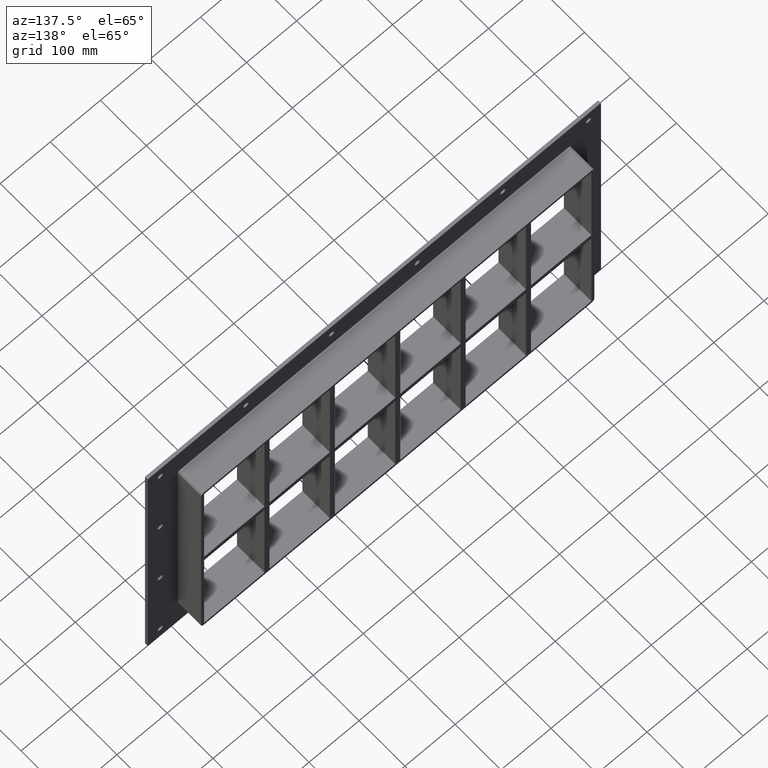
[diagram: clean part render]
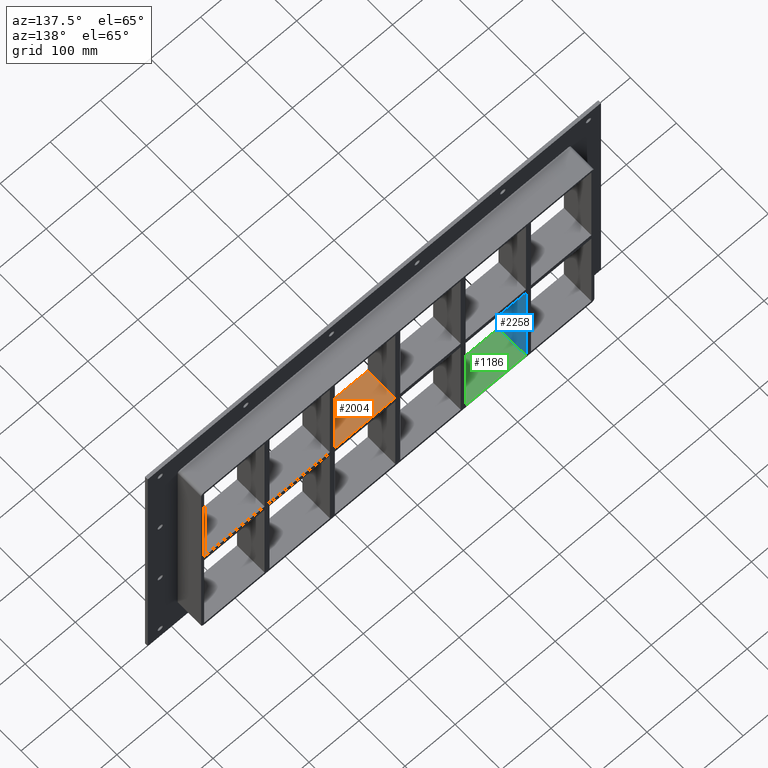
[diagram: same view with three faces highlighted in distinct colors, each labeled with its STEP entity id]
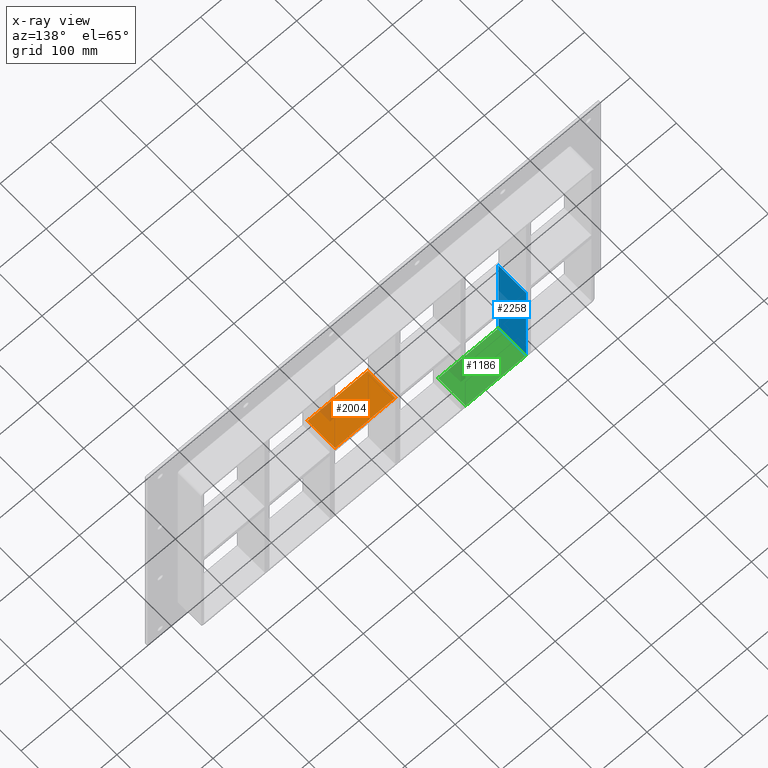
[diagram: x-ray of the same camera — body ghosted, the three highlighted faces saturated]
A machine part, auxiliary view with three faces highlighted in distinct colors.
The next image is the same camera in x-ray (body ghosted, the three faces saturated) — at least one of them is partly hidden behind the body in this view.
Their STEP definitions:

[orange] entity #2004 — the highlighted planar face has unit normal (0, 0, 1).
#681=CARTESIAN_POINT('',(125.49999999999801,-3.0,5.999999999999943));
#682=VERTEX_POINT('',#681);
#683=CARTESIAN_POINT('',(125.49999999999801,57.0,5.999999999999943));
#684=VERTEX_POINT('',#683);
#685=CARTESIAN_POINT('',(125.499999999998,-3.0,5.999999999999943));
#686=DIRECTION('',(0.0,1.0,0.0));
#687=VECTOR('',#686,60.0);
#688=LINE('',#685,#687);
#689=EDGE_CURVE('',#682,#684,#688,.T.);
#921=CARTESIAN_POINT('',(4.999999999996376,57.0,5.999999999999943));
#922=VERTEX_POINT('',#921);
#923=CARTESIAN_POINT('',(4.999999999996376,-3.0,5.999999999999943));
#924=VERTEX_POINT('',#923);
#925=CARTESIAN_POINT('',(4.999999999996376,57.0,5.999999999999943));
#926=DIRECTION('',(0.0,-1.0,0.0));
#927=VECTOR('',#926,60.0);
#928=LINE('',#925,#927);
#929=EDGE_CURVE('',#922,#924,#928,.T.);
#1397=CARTESIAN_POINT('',(4.999999999996362,-3.0,5.999999999999943));
#1398=DIRECTION('',(1.0,0.0,0.0));
#1399=VECTOR('',#1398,120.50000000000171);
#1400=LINE('',#1397,#1399);
#1401=EDGE_CURVE('',#924,#682,#1400,.T.);
#1829=CARTESIAN_POINT('',(4.999999999996362,57.0,5.999999999999943));
#1830=DIRECTION('',(1.0,0.0,0.0));
#1831=VECTOR('',#1830,120.50000000000171);
#1832=LINE('',#1829,#1831);
#1833=EDGE_CURVE('',#922,#684,#1832,.T.);
#1993=CARTESIAN_POINT('',(-386.50000000000057,-3.0,5.999999999999943));
#1994=DIRECTION('',(0.0,0.0,1.0));
#1995=DIRECTION('',(1.0,0.0,0.0));
#1996=AXIS2_PLACEMENT_3D('',#1993,#1994,#1995);
#1997=PLANE('',#1996);
#1998=ORIENTED_EDGE('',*,*,#689,.T.);
#1999=ORIENTED_EDGE('',*,*,#1833,.F.);
#2000=ORIENTED_EDGE('',*,*,#929,.T.);
#2001=ORIENTED_EDGE('',*,*,#1401,.T.);
#2002=EDGE_LOOP('',(#1998,#1999,#2000,#2001));
#2003=FACE_OUTER_BOUND('',#2002,.T.);
#2004=ADVANCED_FACE('',(#2003),#1997,.T.);

[blue] entity #2258 — the highlighted planar face has unit normal (1, 0, 0).
#1162=CARTESIAN_POINT('',(-256.00000000000364,57.0,-223.99999999998656));
#1163=VERTEX_POINT('',#1162);
#1170=CARTESIAN_POINT('',(-256.00000000000364,-3.0,-223.99999999998653));
#1171=VERTEX_POINT('',#1170);
#1172=CARTESIAN_POINT('',(-256.00000000000358,57.000000000000007,-224.00000000000006));
#1173=DIRECTION('',(0.0,-1.0,0.0));
#1174=VECTOR('',#1173,60.000000000000007);
#1175=LINE('',#1172,#1174);
#1176=EDGE_CURVE('',#1163,#1171,#1175,.T.);
#1441=CARTESIAN_POINT('',(-256.00000000000364,-3.0,-6.000000000010179));
#1442=VERTEX_POINT('',#1441);
#1443=CARTESIAN_POINT('',(-256.00000000000364,-3.0,-6.000000000010175));
#1444=DIRECTION('',(0.0,0.0,-1.0));
#1445=VECTOR('',#1444,217.99999999997635);
#1446=LINE('',#1443,#1445);
#1447=EDGE_CURVE('',#1442,#1171,#1446,.T.);
#1626=CARTESIAN_POINT('',(-256.00000000000364,57.0,-6.000000000010179));
#1627=VERTEX_POINT('',#1626);
#1628=CARTESIAN_POINT('',(-256.00000000000364,57.0,-6.000000000010167));
#1629=DIRECTION('',(0.0,-1.0,0.0));
#1630=VECTOR('',#1629,60.0);
#1631=LINE('',#1628,#1630);
#1632=EDGE_CURVE('',#1627,#1442,#1631,.T.);
#1861=CARTESIAN_POINT('',(-256.00000000000364,57.0,-6.000000000010175));
#1862=DIRECTION('',(0.0,0.0,-1.0));
#1863=VECTOR('',#1862,217.99999999997635);
#1864=LINE('',#1861,#1863);
#1865=EDGE_CURVE('',#1627,#1163,#1864,.T.);
#2247=CARTESIAN_POINT('',(-256.00000000000364,-3.0,224.00000000000006));
#2248=DIRECTION('',(1.0,0.0,0.0));
#2249=DIRECTION('',(0.0,0.0,-1.0));
#2250=AXIS2_PLACEMENT_3D('',#2247,#2248,#2249);
#2251=PLANE('',#2250);
#2252=ORIENTED_EDGE('',*,*,#1632,.T.);
#2253=ORIENTED_EDGE('',*,*,#1447,.T.);
#2254=ORIENTED_EDGE('',*,*,#1176,.F.);
#2255=ORIENTED_EDGE('',*,*,#1865,.F.);
#2256=EDGE_LOOP('',(#2252,#2253,#2254,#2255));
#2257=FACE_OUTER_BOUND('',#2256,.T.);
#2258=ADVANCED_FACE('',(#2257),#2251,.T.);

[green] entity #1186 — the highlighted planar face has unit normal (0, 0, -1).
#1051=CARTESIAN_POINT('',(-135.50000000000199,57.0,-224.00000000000006));
#1052=VERTEX_POINT('',#1051);
#1059=CARTESIAN_POINT('',(-135.50000000000199,-3.0,-224.00000000000006));
#1060=VERTEX_POINT('',#1059);
#1061=CARTESIAN_POINT('',(-135.50000000000202,-3.0,-224.00000000000006));
#1062=DIRECTION('',(0.0,1.0,0.0));
#1063=VECTOR('',#1062,60.000000000000007);
#1064=LINE('',#1061,#1063);
#1065=EDGE_CURVE('',#1060,#1052,#1064,.T.);
#1156=CARTESIAN_POINT('',(386.50000000000011,0.0,-224.00000000000006));
#1157=DIRECTION('',(0.0,0.0,-1.0));
#1158=DIRECTION('',(-1.0,0.0,0.0));
#1159=AXIS2_PLACEMENT_3D('',#1156,#1157,#1158);
#1160=PLANE('',#1159);
#1161=ORIENTED_EDGE('',*,*,#1065,.T.);
#1162=CARTESIAN_POINT('',(-256.00000000000364,57.0,-223.99999999998656));
#1163=VERTEX_POINT('',#1162);
#1164=CARTESIAN_POINT('',(-256.00000000000364,57.0,-224.00000000000006));
#1165=DIRECTION('',(1.0,0.0,0.0));
#1166=VECTOR('',#1165,120.50000000000168);
#1167=LINE('',#1164,#1166);
#1168=EDGE_CURVE('',#1163,#1052,#1167,.T.);
#1169=ORIENTED_EDGE('',*,*,#1168,.F.);
#1170=CARTESIAN_POINT('',(-256.00000000000364,-3.0,-223.99999999998653));
#1171=VERTEX_POINT('',#1170);
#1172=CARTESIAN_POINT('',(-256.00000000000358,57.000000000000007,-224.00000000000006));
#1173=DIRECTION('',(0.0,-1.0,0.0));
#1174=VECTOR('',#1173,60.000000000000007);
#1175=LINE('',#1172,#1174);
#1176=EDGE_CURVE('',#1163,#1171,#1175,.T.);
#1177=ORIENTED_EDGE('',*,*,#1176,.T.);
#1178=CARTESIAN_POINT('',(-135.50000000000196,-3.0,-224.00000000000006));
#1179=DIRECTION('',(-1.0,0.0,0.0));
#1180=VECTOR('',#1179,120.50000000000168);
#1181=LINE('',#1178,#1180);
#1182=EDGE_CURVE('',#1060,#1171,#1181,.T.);
#1183=ORIENTED_EDGE('',*,*,#1182,.F.);
#1184=EDGE_LOOP('',(#1161,#1169,#1177,#1183));
#1185=FACE_OUTER_BOUND('',#1184,.T.);
#1186=ADVANCED_FACE('',(#1185),#1160,.F.);